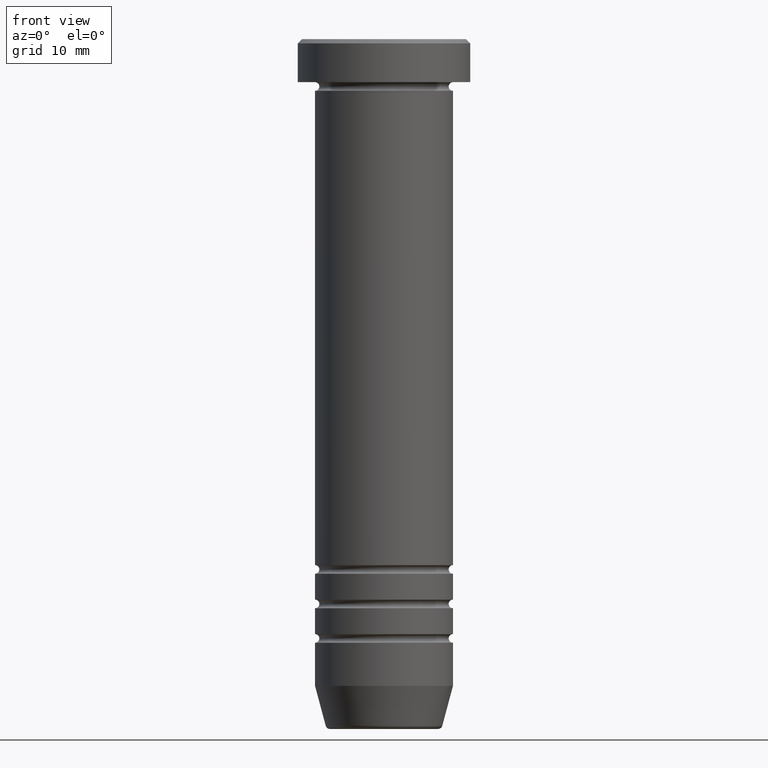
[diagram: clean part render]
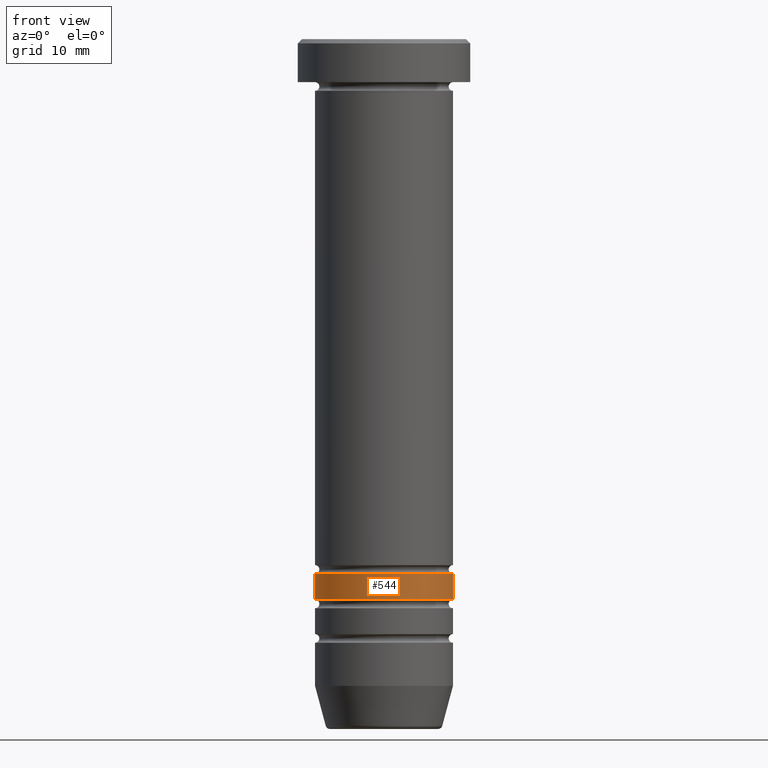
[diagram: same view with one face highlighted and labeled with its STEP entity id]
A machine part, front view. The second image highlights one B-rep face of the part: STEP entity #544.
In plain terms, the highlighted cylindrical surface (partial cylindrical patch) has radius 8 mm, axis along (-0, -0, 1).
Its self-contained STEP definition (entity closure, byte-faithful):
#13 = EDGE_LOOP ( 'NONE', ( #234, #183, #336, #861 ) ) ;
#30 = CYLINDRICAL_SURFACE ( 'NONE', #998, 8.000000000000000000 ) ;
#44 = FACE_OUTER_BOUND ( 'NONE', #13, .T. ) ;
#97 = VERTEX_POINT ( 'NONE', #627 ) ;
#98 = LINE ( 'NONE', #578, #362 ) ;
#125 = CIRCLE ( 'NONE', #486, 7.999999999999998224 ) ;
#138 = AXIS2_PLACEMENT_3D ( 'NONE', #704, #280, #699 ) ;
#183 = ORIENTED_EDGE ( 'NONE', *, *, #741, .T. ) ;
#187 = CARTESIAN_POINT ( 'NONE',  ( 7.999999999999998224, 0.000000000000000000, -64.99999999999998579 ) ) ;
#231 = CARTESIAN_POINT ( 'NONE',  ( 0.000000000000000000, 0.000000000000000000, -64.99999999999998579 ) ) ;
#234 = ORIENTED_EDGE ( 'NONE', *, *, #801, .F. ) ;
#248 = LINE ( 'NONE', #253, #416 ) ;
#253 = CARTESIAN_POINT ( 'NONE',  ( -8.000000000000000000, 9.797174393178825657E-16, 0.000000000000000000 ) ) ;
#273 = CARTESIAN_POINT ( 'NONE',  ( -7.999999999999998224, 9.797174393178823685E-16, -64.99999999999998579 ) ) ;
#280 = DIRECTION ( 'NONE',  ( -0.000000000000000000, -0.000000000000000000, 1.000000000000000000 ) ) ;
#313 = VERTEX_POINT ( 'NONE', #273 ) ;
#336 = ORIENTED_EDGE ( 'NONE', *, *, #805, .T. ) ;
#362 = VECTOR ( 'NONE', #425, 1000.000000000000000 ) ;
#416 = VECTOR ( 'NONE', #493, 1000.000000000000000 ) ;
#425 = DIRECTION ( 'NONE',  ( -0.000000000000000000, -0.000000000000000000, 1.000000000000000000 ) ) ;
#486 = AXIS2_PLACEMENT_3D ( 'NONE', #231, #560, #887 ) ;
#493 = DIRECTION ( 'NONE',  ( -0.000000000000000000, -0.000000000000000000, 1.000000000000000000 ) ) ;
#540 = DIRECTION ( 'NONE',  ( 1.000000000000000000, 0.000000000000000000, 0.000000000000000000 ) ) ;
#544 = ADVANCED_FACE ( 'NONE', ( #44 ), #30, .T. ) ;
#557 = EDGE_CURVE ( 'NONE', #97, #619, #915, .T. ) ;
#560 = DIRECTION ( 'NONE',  ( -0.000000000000000000, -0.000000000000000000, 1.000000000000000000 ) ) ;
#578 = CARTESIAN_POINT ( 'NONE',  ( 8.000000000000000000, 0.000000000000000000, 0.000000000000000000 ) ) ;
#619 = VERTEX_POINT ( 'NONE', #883 ) ;
#627 = CARTESIAN_POINT ( 'NONE',  ( -8.000000000000000000, 9.797174393178825657E-16, -61.99999999999999289 ) ) ;
#629 = CARTESIAN_POINT ( 'NONE',  ( 0.000000000000000000, 0.000000000000000000, 0.000000000000000000 ) ) ;
#699 = DIRECTION ( 'NONE',  ( 1.000000000000000000, 0.000000000000000000, 0.000000000000000000 ) ) ;
#704 = CARTESIAN_POINT ( 'NONE',  ( 0.000000000000000000, 0.000000000000000000, -61.99999999999999289 ) ) ;
#741 = EDGE_CURVE ( 'NONE', #313, #908, #125, .T. ) ;
#801 = EDGE_CURVE ( 'NONE', #313, #97, #248, .T. ) ;
#805 = EDGE_CURVE ( 'NONE', #908, #619, #98, .T. ) ;
#861 = ORIENTED_EDGE ( 'NONE', *, *, #557, .F. ) ;
#883 = CARTESIAN_POINT ( 'NONE',  ( 8.000000000000000000, 0.000000000000000000, -61.99999999999999289 ) ) ;
#887 = DIRECTION ( 'NONE',  ( 1.000000000000000000, 0.000000000000000000, 0.000000000000000000 ) ) ;
#908 = VERTEX_POINT ( 'NONE', #187 ) ;
#915 = CIRCLE ( 'NONE', #138, 8.000000000000000000 ) ;
#956 = DIRECTION ( 'NONE',  ( -0.000000000000000000, -0.000000000000000000, 1.000000000000000000 ) ) ;
#998 = AXIS2_PLACEMENT_3D ( 'NONE', #629, #956, #540 ) ;